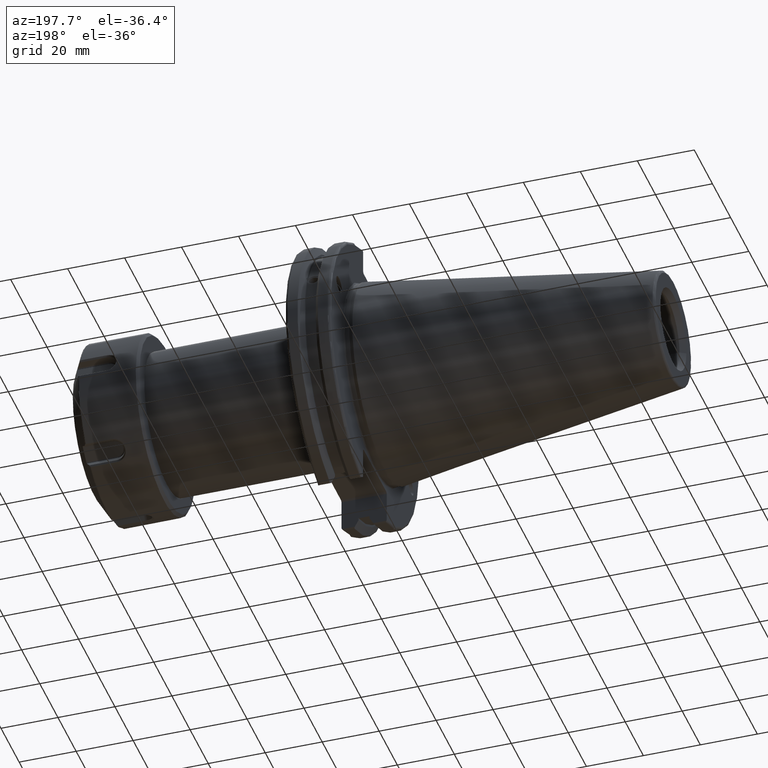
[diagram: clean part render]
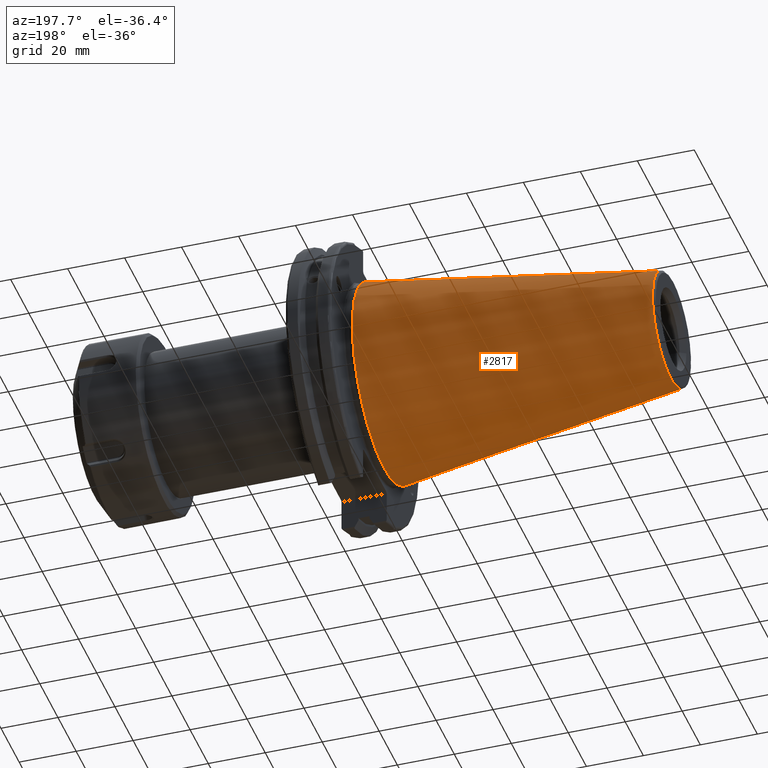
[diagram: same view with one face highlighted and labeled with its STEP entity id]
A machine part, auxiliary view. The second image highlights one B-rep face of the part: STEP entity #2817.
In plain terms, the highlighted conical surface has half-angle 8.297 deg.
Its self-contained STEP definition (entity closure, byte-faithful):
#376=FACE_OUTER_BOUND('',#562,.T.);
#562=EDGE_LOOP('',(#2189,#2190,#2191,#2192,#2193));
#756=LINE('',#4939,#932);
#932=VECTOR('',#3624,27.5166666666666);
#1092=CIRCLE('',#3117,20.233121911427);
#1093=CIRCLE('',#3118,20.233121911427);
#1097=CIRCLE('',#3124,34.925);
#1301=VERTEX_POINT('',#4926);
#1302=VERTEX_POINT('',#4927);
#1305=VERTEX_POINT('',#4937);
#1629=EDGE_CURVE('',#1301,#1302,#1092,.T.);
#1630=EDGE_CURVE('',#1302,#1301,#1093,.T.);
#1634=EDGE_CURVE('',#1305,#1305,#1097,.T.);
#1635=EDGE_CURVE('',#1305,#1302,#756,.T.);
#2189=ORIENTED_EDGE('',*,*,#1634,.F.);
#2190=ORIENTED_EDGE('',*,*,#1635,.T.);
#2191=ORIENTED_EDGE('',*,*,#1629,.F.);
#2192=ORIENTED_EDGE('',*,*,#1630,.F.);
#2193=ORIENTED_EDGE('',*,*,#1635,.F.);
#2744=CONICAL_SURFACE('',#3123,27.5166666666666,0.14481249823894);
#2817=ADVANCED_FACE('',(#376),#2744,.T.);
#3117=AXIS2_PLACEMENT_3D('',#4928,#3608,#3609);
#3118=AXIS2_PLACEMENT_3D('',#4929,#3610,#3611);
#3123=AXIS2_PLACEMENT_3D('',#4936,#3620,#3621);
#3124=AXIS2_PLACEMENT_3D('',#4938,#3622,#3623);
#3608=DIRECTION('center_axis',(-1.,0.,0.));
#3609=DIRECTION('ref_axis',(0.,-1.,3.06161699786838E-17));
#3610=DIRECTION('center_axis',(-1.,0.,0.));
#3611=DIRECTION('ref_axis',(0.,-1.,3.06161699786838E-17));
#3620=DIRECTION('center_axis',(1.,0.,0.));
#3621=DIRECTION('ref_axis',(0.,1.,0.));
#3622=DIRECTION('center_axis',(1.,0.,0.));
#3623=DIRECTION('ref_axis',(0.,0.,-1.));
#3624=DIRECTION('',(-0.989532981063281,0.144306893071729,1.76724974695192E-17));
#4926=CARTESIAN_POINT('',(-100.744306893072,-2.47784279855872E-15,20.233121911427));
#4927=CARTESIAN_POINT('',(-100.744306893072,-20.233121911427,-2.47784279855872E-15));
#4928=CARTESIAN_POINT('Origin',(-100.744306893072,0.,-3.09730349819841E-15));
#4929=CARTESIAN_POINT('Origin',(-100.744306893072,0.,-3.09730349819841E-15));
#4936=CARTESIAN_POINT('Origin',(-50.8,0.,0.));
#4937=CARTESIAN_POINT('',(-8.88178419700125E-15,-34.925,-4.27707894602213E-15));
#4938=CARTESIAN_POINT('Origin',(0.,0.,0.));
#4939=CARTESIAN_POINT('',(-50.8,-27.5166666666666,-3.3698197756538E-15));